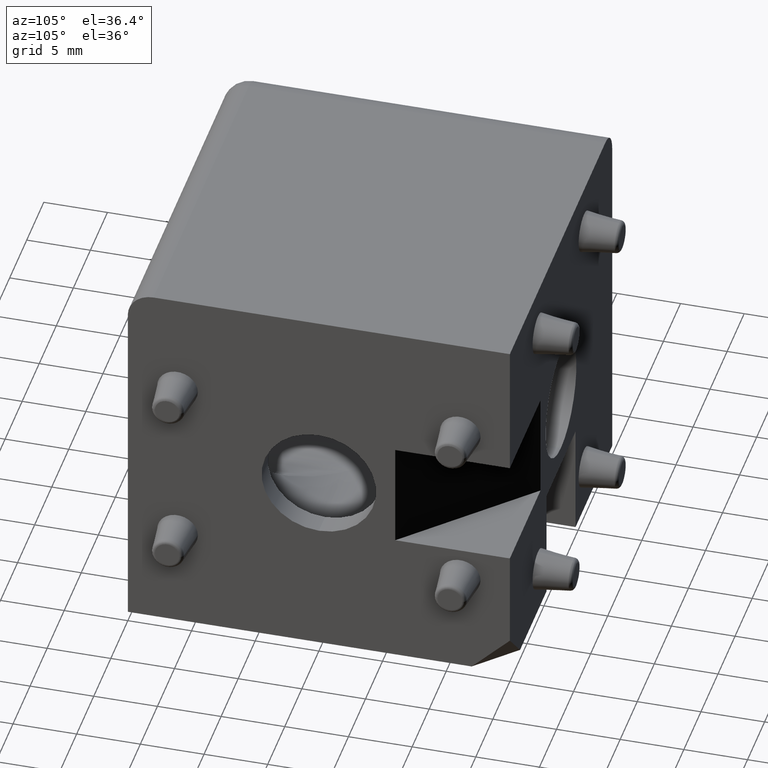
[diagram: clean part render]
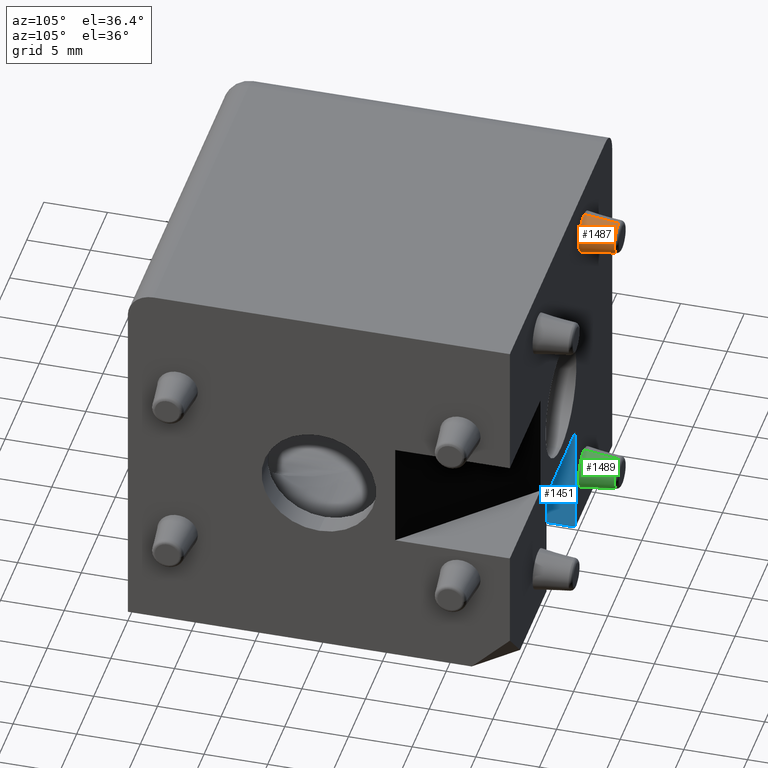
[diagram: same view with three faces highlighted in distinct colors, each labeled with its STEP entity id]
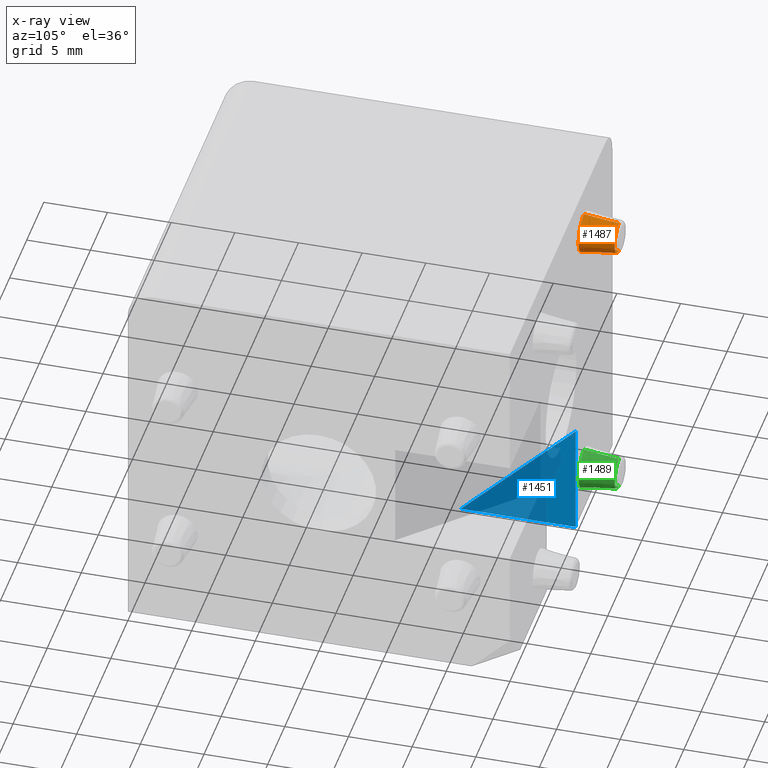
[diagram: x-ray of the same camera — body ghosted, the three highlighted faces saturated]
A machine part, auxiliary view with three faces highlighted in distinct colors.
The next image is the same camera in x-ray (body ghosted, the three faces saturated) — at least one of them is partly hidden behind the body in this view.
Their STEP definitions:

[orange] entity #1487 — the highlighted conical surface has half-angle 7 deg.
#102=LINE('',#2758,#170);
#103=LINE('',#2761,#171);
#170=VECTOR('',#2090,2.75711189700976);
#171=VECTOR('',#2093,2.75711189700976);
#330=FACE_OUTER_BOUND('',#445,.T.);
#445=EDGE_LOOP('',(#1273,#1274,#1275,#1276));
#532=CIRCLE('',#1621,1.2639925834169);
#576=CIRCLE('',#1683,1.6);
#681=VERTEX_POINT('',#2663);
#682=VERTEX_POINT('',#2664);
#713=VERTEX_POINT('',#2757);
#714=VERTEX_POINT('',#2759);
#850=EDGE_CURVE('',#681,#682,#532,.T.);
#899=EDGE_CURVE('',#681,#713,#102,.T.);
#901=EDGE_CURVE('',#682,#714,#103,.T.);
#920=EDGE_CURVE('',#714,#713,#576,.T.);
#1273=ORIENTED_EDGE('',*,*,#899,.F.);
#1274=ORIENTED_EDGE('',*,*,#850,.T.);
#1275=ORIENTED_EDGE('',*,*,#901,.T.);
#1276=ORIENTED_EDGE('',*,*,#920,.T.);
#1411=CONICAL_SURFACE('',#1704,1.6,7.00000000000002);
#1487=ADVANCED_FACE('',(#330),#1411,.T.);
#1621=AXIS2_PLACEMENT_3D('',#2665,#1978,#1979);
#1683=AXIS2_PLACEMENT_3D('',#2794,#2128,#2129);
#1704=AXIS2_PLACEMENT_3D('',#2824,#2176,#2177);
#1978=DIRECTION('center_axis',(0.,-1.,0.));
#1979=DIRECTION('ref_axis',(0.,0.,-1.));
#2090=DIRECTION('',(-1.49246901315304E-17,-0.992546151641322,-0.121869343405148));
#2093=DIRECTION('',(0.,-0.992546151641322,0.121869343405148));
#2128=DIRECTION('center_axis',(0.,1.,0.));
#2129=DIRECTION('ref_axis',(0.,0.,-1.));
#2176=DIRECTION('center_axis',(0.,-1.,0.));
#2177=DIRECTION('ref_axis',(0.,0.,1.));
#2663=CARTESIAN_POINT('',(-6.75,17.7365608030215,9.8360074165831));
#2664=CARTESIAN_POINT('',(-6.75,17.7365608030215,12.3639925834169));
#2665=CARTESIAN_POINT('Origin',(-6.75,17.7365608030215,11.1));
#2757=CARTESIAN_POINT('',(-6.75,15.,9.5));
#2758=CARTESIAN_POINT('',(-6.75,15.,9.5));
#2759=CARTESIAN_POINT('',(-6.75,15.,12.7));
#2761=CARTESIAN_POINT('',(-6.75,15.,12.7));
#2794=CARTESIAN_POINT('Origin',(-6.75,15.,11.1));
#2824=CARTESIAN_POINT('Origin',(-6.75,15.,11.1));

[blue] entity #1451 — the highlighted planar face has unit normal (1, 0, 0).
#38=PLANE('',#1600);
#65=LINE('',#2555,#133);
#84=LINE('',#2625,#152);
#85=LINE('',#2626,#153);
#133=VECTOR('',#1865,9.);
#152=VECTOR('',#1932,9.);
#153=VECTOR('',#1933,12.7279220613579);
#294=FACE_OUTER_BOUND('',#402,.T.);
#402=EDGE_LOOP('',(#1106,#1107,#1108));
#640=VERTEX_POINT('',#2552);
#641=VERTEX_POINT('',#2554);
#668=VERTEX_POINT('',#2624);
#794=EDGE_CURVE('',#641,#640,#65,.T.);
#830=EDGE_CURVE('',#640,#668,#84,.T.);
#831=EDGE_CURVE('',#641,#668,#85,.T.);
#1106=ORIENTED_EDGE('',*,*,#794,.T.);
#1107=ORIENTED_EDGE('',*,*,#830,.T.);
#1108=ORIENTED_EDGE('',*,*,#831,.F.);
#1451=ADVANCED_FACE('',(#294),#38,.T.);
#1600=AXIS2_PLACEMENT_3D('',#2623,#1930,#1931);
#1865=DIRECTION('',(0.,1.,0.));
#1930=DIRECTION('center_axis',(1.,0.,0.));
#1931=DIRECTION('ref_axis',(0.,1.,0.));
#1932=DIRECTION('',(0.,0.,1.));
#1933=DIRECTION('',(0.,0.707106781186548,0.707106781186547));
#2552=CARTESIAN_POINT('',(-4.25,15.,-15.));
#2554=CARTESIAN_POINT('',(-4.25,5.99999999999999,-15.));
#2555=CARTESIAN_POINT('',(-4.25,6.,-15.));
#2623=CARTESIAN_POINT('Origin',(-4.25,15.,-15.));
#2624=CARTESIAN_POINT('',(-4.25,15.,-6.));
#2625=CARTESIAN_POINT('',(-4.25,15.,-6.));
#2626=CARTESIAN_POINT('',(-4.25,11.0813778117713,-9.91862218822868));

[green] entity #1489 — the highlighted conical surface has half-angle 7 deg.
#100=LINE('',#2751,#168);
#101=LINE('',#2754,#169);
#168=VECTOR('',#2082,2.75711189700976);
#169=VECTOR('',#2085,2.75711189700976);
#332=FACE_OUTER_BOUND('',#447,.T.);
#447=EDGE_LOOP('',(#1279,#1280,#1281,#1282));
#540=CIRCLE('',#1631,1.2639925834169);
#579=CIRCLE('',#1686,1.6);
#689=VERTEX_POINT('',#2681);
#690=VERTEX_POINT('',#2682);
#711=VERTEX_POINT('',#2750);
#712=VERTEX_POINT('',#2752);
#858=EDGE_CURVE('',#689,#690,#540,.T.);
#895=EDGE_CURVE('',#689,#711,#100,.T.);
#897=EDGE_CURVE('',#690,#712,#101,.T.);
#923=EDGE_CURVE('',#712,#711,#579,.T.);
#1279=ORIENTED_EDGE('',*,*,#895,.F.);
#1280=ORIENTED_EDGE('',*,*,#858,.T.);
#1281=ORIENTED_EDGE('',*,*,#897,.T.);
#1282=ORIENTED_EDGE('',*,*,#923,.T.);
#1412=CONICAL_SURFACE('',#1707,1.6,7.00000000000002);
#1489=ADVANCED_FACE('',(#332),#1412,.T.);
#1631=AXIS2_PLACEMENT_3D('',#2683,#1998,#1999);
#1686=AXIS2_PLACEMENT_3D('',#2797,#2134,#2135);
#1707=AXIS2_PLACEMENT_3D('',#2827,#2182,#2183);
#1998=DIRECTION('center_axis',(0.,-1.,0.));
#1999=DIRECTION('ref_axis',(0.,0.,-1.));
#2082=DIRECTION('',(-1.49246901315304E-17,-0.992546151641322,-0.121869343405148));
#2085=DIRECTION('',(0.,-0.992546151641322,0.121869343405148));
#2134=DIRECTION('center_axis',(0.,1.,0.));
#2135=DIRECTION('ref_axis',(0.,0.,-1.));
#2182=DIRECTION('center_axis',(0.,-1.,0.));
#2183=DIRECTION('ref_axis',(0.,0.,1.));
#2681=CARTESIAN_POINT('',(-6.75,17.7365608030215,-12.3639925834169));
#2682=CARTESIAN_POINT('',(-6.75,17.7365608030215,-9.8360074165831));
#2683=CARTESIAN_POINT('Origin',(-6.75,17.7365608030215,-11.1));
#2750=CARTESIAN_POINT('',(-6.75,15.,-12.7));
#2751=CARTESIAN_POINT('',(-6.75,15.,-12.7));
#2752=CARTESIAN_POINT('',(-6.75,15.,-9.5));
#2754=CARTESIAN_POINT('',(-6.75,15.,-9.5));
#2797=CARTESIAN_POINT('Origin',(-6.75,15.,-11.1));
#2827=CARTESIAN_POINT('Origin',(-6.75,15.,-11.1));